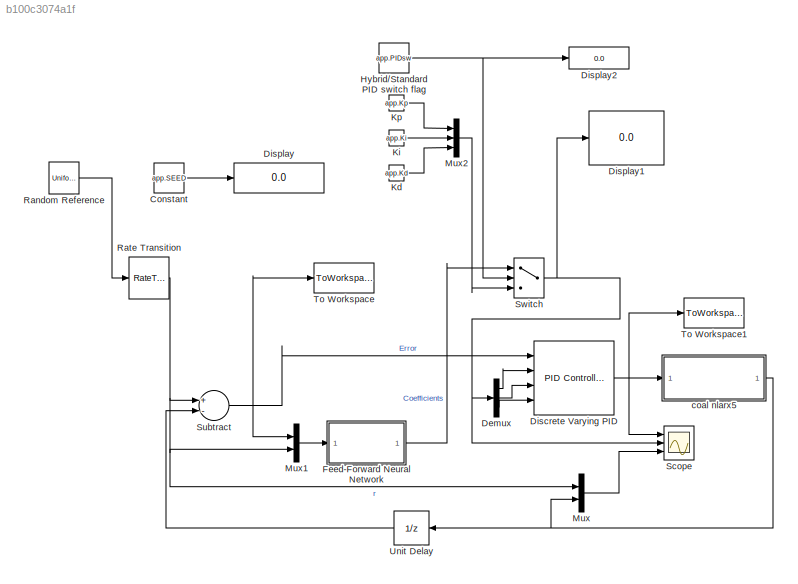
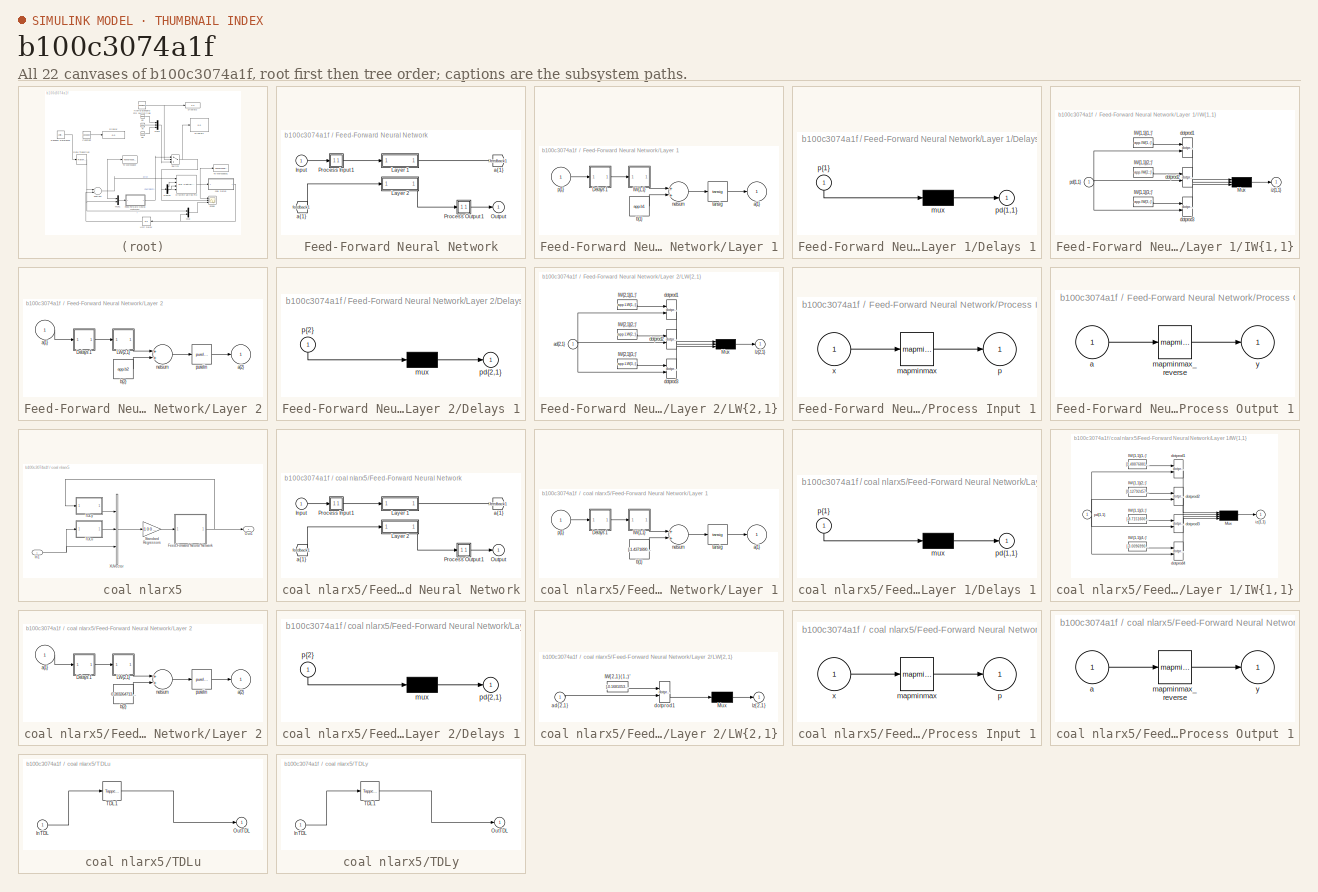
[diagram: thumbnail index - all 22 canvases of the model, root first then tree order]
MODEL slx_b100c3074a1f
KIND model
CONFIG AbsTol = auto
CONFIG EnableMultiTasking = on
CONFIG FixedStep = 1
CONFIG MaxStep = auto
CONFIG MinStep = auto
CONFIG RelTol = 1e-3
CONFIG SampleTimeConstraint = Unconstrained
CONFIG Solver = ode3
CONFIG SolverName = ode3
CONFIG StartTime = 0.0
CONFIG StopTime = 300
BLOCK [Constant] Constant
  Value = app.SEED
BLOCK [Demux] Demux
  DisplayOption = bar
  Outputs = 3
  Ports = [1, 3]
BLOCK [Reference] Discrete Varying PID  REF=simulink/Continuous/PID Controller
  Ports = [4, 1]
  SourceBlock = simulink/Continuous/PID Controller
  SourceProductBaseCode = SL
  SourceProductName = Simulink
  SourceType = PID 1dof
BLOCK [Display] Display
  Decimation = 1
  Ports = [1]
BLOCK [Display] Display1
  Decimation = 1
  Ports = [1]
BLOCK [Display] Display2
  Decimation = 1
  Ports = [1]
BLOCK [SubSystem] Feed-Forward Neural Network
  Ports = [1, 1]
  RequestExecContextInheritance = off
BLOCK [From] Feed-Forward Neural Network/ a{1} 
  GotoTag = feedback1
BLOCK [Inport] Feed-Forward Neural Network/Input
  IconDisplay = Port number
  PortDimensions = 2
BLOCK [SubSystem] Feed-Forward Neural Network/Layer 1
  Ports = [1, 1]
  RequestExecContextInheritance = off
BLOCK [SubSystem] Feed-Forward Neural Network/Layer 1/Delays 1
  Ports = [1, 1]
  RequestExecContextInheritance = off
BLOCK [Mux] Feed-Forward Neural Network/Layer 1/Delays 1/mux
  Inputs = 1
  Ports = [1, 1]
BLOCK [Outport] Feed-Forward Neural Network/Layer 1/Delays 1/pd{1,1}
  IconDisplay = Port number
BLOCK [Inport] Feed-Forward Neural Network/Layer 1/Delays 1/p{1}
  IconDisplay = Port number
  PortDimensions = 2
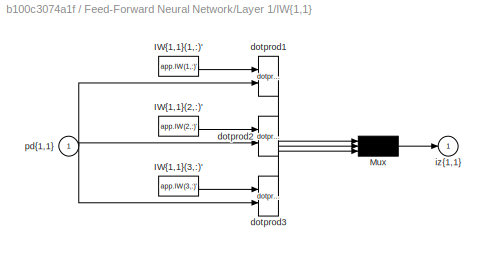
BLOCK [SubSystem] Feed-Forward Neural Network/Layer 1/IW{1,1}
  Ports = [1, 1]
  RequestExecContextInheritance = off
BLOCK [Constant] Feed-Forward Neural Network/Layer 1/IW{1,1}/IW{1,1}(1,:)'
  Value = app.IW(1,:)'
BLOCK [Constant] Feed-Forward Neural Network/Layer 1/IW{1,1}/IW{1,1}(2,:)'
  Value = app.IW(2,:)'
BLOCK [Constant] Feed-Forward Neural Network/Layer 1/IW{1,1}/IW{1,1}(3,:)'
  Value = app.IW(3,:)'
BLOCK [Mux] Feed-Forward Neural Network/Layer 1/IW{1,1}/Mux
  Inputs = 3
  Ports = [3, 1]
BLOCK [Reference] Feed-Forward Neural Network/Layer 1/IW{1,1}/dotprod1  REF=neural/Weight Functions/dotprod
  Ports = [2, 1]
  SourceBlock = neural/Weight Functions/dotprod
  SourceProductBaseCode = NN
  SourceProductName = Neural Network Toolbox
  SourceType = DOTPROD
BLOCK [Reference] Feed-Forward Neural Network/Layer 1/IW{1,1}/dotprod2  REF=neural/Weight Functions/dotprod
  Ports = [2, 1]
  SourceBlock = neural/Weight Functions/dotprod
  SourceProductBaseCode = NN
  SourceProductName = Neural Network Toolbox
  SourceType = DOTPROD
BLOCK [Reference] Feed-Forward Neural Network/Layer 1/IW{1,1}/dotprod3  REF=neural/Weight Functions/dotprod
  Ports = [2, 1]
  SourceBlock = neural/Weight Functions/dotprod
  SourceProductBaseCode = NN
  SourceProductName = Neural Network Toolbox
  SourceType = DOTPROD
BLOCK [Outport] Feed-Forward Neural Network/Layer 1/IW{1,1}/iz{1,1}
  IconDisplay = Port number
BLOCK [Inport] Feed-Forward Neural Network/Layer 1/IW{1,1}/pd{1,1}
  IconDisplay = Port number
  PortDimensions = 2
BLOCK [Outport] Feed-Forward Neural Network/Layer 1/a{1}
  IconDisplay = Port number
  InitialOutput = [0;0;0]
BLOCK [Constant] Feed-Forward Neural Network/Layer 1/b{1}
  Value = app.b1
BLOCK [Sum] Feed-Forward Neural Network/Layer 1/netsum
  Inputs = 2
  Ports = [2, 1]
BLOCK [Inport] Feed-Forward Neural Network/Layer 1/p{1}
  IconDisplay = Port number
  PortDimensions = 2
BLOCK [Reference] Feed-Forward Neural Network/Layer 1/tansig  REF=neural/Transfer Functions/tansig
  Ports = [1, 1]
  SourceBlock = neural/Transfer Functions/tansig
  SourceProductBaseCode = NN
  SourceProductName = Neural Network Toolbox
  SourceType = TANSIG
BLOCK [SubSystem] Feed-Forward Neural Network/Layer 2
  Ports = [1, 1]
  RequestExecContextInheritance = off
BLOCK [SubSystem] Feed-Forward Neural Network/Layer 2/Delays 1
  Ports = [1, 1]
  RequestExecContextInheritance = off
BLOCK [Mux] Feed-Forward Neural Network/Layer 2/Delays 1/mux
  Inputs = 1
  Ports = [1, 1]
BLOCK [Outport] Feed-Forward Neural Network/Layer 2/Delays 1/pd{2,1}
  IconDisplay = Port number
BLOCK [Inport] Feed-Forward Neural Network/Layer 2/Delays 1/p{2}
  IconDisplay = Port number
  PortDimensions = 3
BLOCK [SubSystem] Feed-Forward Neural Network/Layer 2/LW{2,1}
  Ports = [1, 1]
  RequestExecContextInheritance = off
BLOCK [Constant] Feed-Forward Neural Network/Layer 2/LW{2,1}/IW{2,1}(1,:)'
  Value = app.LW(1,:)'
BLOCK [Constant] Feed-Forward Neural Network/Layer 2/LW{2,1}/IW{2,1}(2,:)'
  Value = app.LW(2,:)'
BLOCK [Constant] Feed-Forward Neural Network/Layer 2/LW{2,1}/IW{2,1}(3,:)'
  Value = app.LW(3,:)'
BLOCK [Mux] Feed-Forward Neural Network/Layer 2/LW{2,1}/Mux
  Inputs = 3
  Ports = [3, 1]
BLOCK [Inport] Feed-Forward Neural Network/Layer 2/LW{2,1}/ad{2,1}
  IconDisplay = Port number
  PortDimensions = 3
BLOCK [Reference] Feed-Forward Neural Network/Layer 2/LW{2,1}/dotprod1  REF=neural/Weight Functions/dotprod
  Ports = [2, 1]
  SourceBlock = neural/Weight Functions/dotprod
  SourceProductBaseCode = NN
  SourceProductName = Neural Network Toolbox
  SourceType = DOTPROD
BLOCK [Reference] Feed-Forward Neural Network/Layer 2/LW{2,1}/dotprod2  REF=neural/Weight Functions/dotprod
  Ports = [2, 1]
  SourceBlock = neural/Weight Functions/dotprod
  SourceProductBaseCode = NN
  SourceProductName = Neural Network Toolbox
  SourceType = DOTPROD
BLOCK [Reference] Feed-Forward Neural Network/Layer 2/LW{2,1}/dotprod3  REF=neural/Weight Functions/dotprod
  Ports = [2, 1]
  SourceBlock = neural/Weight Functions/dotprod
  SourceProductBaseCode = NN
  SourceProductName = Neural Network Toolbox
  SourceType = DOTPROD
BLOCK [Outport] Feed-Forward Neural Network/Layer 2/LW{2,1}/lz{2,1}
  IconDisplay = Port number
BLOCK [Inport] Feed-Forward Neural Network/Layer 2/a{1} 
  IconDisplay = Port number
  PortDimensions = 3
BLOCK [Outport] Feed-Forward Neural Network/Layer 2/a{2}
  IconDisplay = Port number
  InitialOutput = [0;0;0]
BLOCK [Constant] Feed-Forward Neural Network/Layer 2/b{2}
  Value = app.b2
BLOCK [Sum] Feed-Forward Neural Network/Layer 2/netsum
  Inputs = 2
  Ports = [2, 1]
BLOCK [Reference] Feed-Forward Neural Network/Layer 2/purelin  REF=neural/Transfer Functions/purelin
  Ports = [1, 1]
  SourceBlock = neural/Transfer Functions/purelin
  SourceProductBaseCode = NN
  SourceProductName = Neural Network Toolbox
  SourceType = PURELIN
BLOCK [Outport] Feed-Forward Neural Network/Output
  IconDisplay = Port number
  InitialOutput = [0;0;0]
BLOCK [SubSystem] Feed-Forward Neural Network/Process Input 1
  Ports = [1, 1]
  RequestExecContextInheritance = off
BLOCK [Reference] Feed-Forward Neural Network/Process Input 1/mapminmax  REF=neural/Processing Functions/mapminmax
  Ports = [1, 1]
  SourceBlock = neural/Processing Functions/mapminmax
  SourceProductBaseCode = NN
  SourceProductName = Neural Network Toolbox
  SourceType = MAPMINMAX Preprocess
BLOCK [Outport] Feed-Forward Neural Network/Process Input 1/p
  IconDisplay = Port number
  PortDimensions = 2
BLOCK [Inport] Feed-Forward Neural Network/Process Input 1/x
  IconDisplay = Port number
  PortDimensions = 2
BLOCK [SubSystem] Feed-Forward Neural Network/Process Output 1
  Ports = [1, 1]
  RequestExecContextInheritance = off
BLOCK [Inport] Feed-Forward Neural Network/Process Output 1/a
  IconDisplay = Port number
  PortDimensions = 3
BLOCK [Reference] Feed-Forward Neural Network/Process Output 1/mapminmax_reverse  REF=neural/Processing Functions/mapminmax_reverse
  Ports = [1, 1]
  SourceBlock = neural/Processing Functions/mapminmax_reverse
  SourceProductBaseCode = NN
  SourceProductName = Neural Network Toolbox
  SourceType = MAPMINMAX Reverse Process
BLOCK [Outport] Feed-Forward Neural Network/Process Output 1/y
  IconDisplay = Port number
  PortDimensions = 3
BLOCK [Goto] Feed-Forward Neural Network/a{1}
  GotoTag = feedback1
BLOCK [Constant] Hybrid//Standard PID switch flag
  Value = app.PIDsw
BLOCK [Constant] Kd
  Value = app.Kd
BLOCK [Constant] Ki 
  Value = app.Ki
BLOCK [Constant] Kp
  Value = app.Kp
BLOCK [Mux] Mux
  DisplayOption = bar
  Inputs = 2
  Ports = [2, 1]
BLOCK [Mux] Mux1
  DisplayOption = bar
  Inputs = 2
  Ports = [2, 1]
BLOCK [Mux] Mux2
  DisplayOption = bar
  Inputs = 3
  Ports = [3, 1]
BLOCK [UniformRandomNumber] Random Reference
  Maximum = 110
  Minimum = 10
  SampleTime = 100
  Seed = app.SEED
BLOCK [RateTransition] Rate Transition
  Deterministic = off
  InitialCondition = 60
  OutPortSampleTime = 1
BLOCK [Scope] Scope
  Floating = off
  NumInputPorts = 3
  Ports = [3]
  ScopeSpecificationString = Simulink.scopes.TimeScopeBlockCfg('CurrentConfiguration', extmgr.ConfigurationSet(extmgr.Configuration('Core','General UI',true),extmgr.Configuration('Core','Source UI',true),extmgr.Configuration('Sources','WiredSimulink',true,'DataLoggingLimitDataPoints',true,'DataLoggingSaveFormat','Array','DataLoggingDecimation','1','DataLoggingDecimateData',true),extmgr.Configuration('Visuals','Time Domain',tr...<+2962ch>
BLOCK [Sum] Subtract
  InputSameDT = off
  Inputs = +-
  OutDataTypeStr = Inherit: Inherit via internal rule
  Ports = [2, 1]
  SaturateOnIntegerOverflow = off
BLOCK [Switch] Switch
  Criteria = u2 > Threshold
  InputSameDT = off
  SaturateOnIntegerOverflow = off
  Threshold = 0.5
BLOCK [ToWorkspace] To Workspace
  FixptAsFi = on
  MaxDataPoints = inf
  Ports = [1]
  SampleTime = -1
  Save2DSignal = 3-D array (concatenate along third dimension)
  SaveFormat = Timeseries
  VariableName = simout
BLOCK [ToWorkspace] To Workspace1
  FixptAsFi = on
  MaxDataPoints = inf
  Ports = [1]
  SampleTime = -1
  Save2DSignal = 3-D array (concatenate along third dimension)
  SaveFormat = Timeseries
  VariableName = simout1
BLOCK [UnitDelay] Unit Delay
  InputProcessing = Elements as channels (sample based)
  SampleTime = -1
BLOCK [SubSystem] coal nlarx5
  Ports = [1, 1]
  RequestExecContextInheritance = off
BLOCK [SubSystem] coal nlarx5/Feed-Forward Neural Network
  Ports = [1, 1]
  RequestExecContextInheritance = off
BLOCK [From] coal nlarx5/Feed-Forward Neural Network/ a{1} 
  GotoTag = feedback1
BLOCK [Inport] coal nlarx5/Feed-Forward Neural Network/Input
  IconDisplay = Port number
  PortDimensions = 4
BLOCK [SubSystem] coal nlarx5/Feed-Forward Neural Network/Layer 1
  Ports = [1, 1]
  RequestExecContextInheritance = off
BLOCK [SubSystem] coal nlarx5/Feed-Forward Neural Network/Layer 1/Delays 1
  Ports = [1, 1]
  RequestExecContextInheritance = off
BLOCK [Mux] coal nlarx5/Feed-Forward Neural Network/Layer 1/Delays 1/mux
  Inputs = 1
  Ports = [1, 1]
BLOCK [Outport] coal nlarx5/Feed-Forward Neural Network/Layer 1/Delays 1/pd{1,1}
  IconDisplay = Port number
BLOCK [Inport] coal nlarx5/Feed-Forward Neural Network/Layer 1/Delays 1/p{1}
  IconDisplay = Port number
  PortDimensions = 4
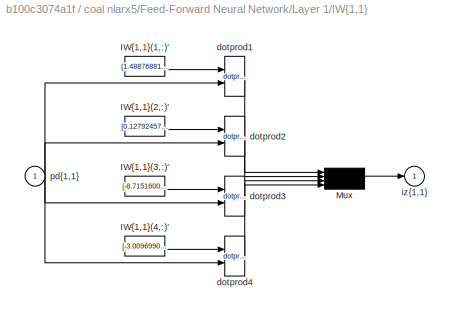
BLOCK [SubSystem] coal nlarx5/Feed-Forward Neural Network/Layer 1/IW{1,1}
  Ports = [1, 1]
  RequestExecContextInheritance = off
BLOCK [Constant] coal nlarx5/Feed-Forward Neural Network/Layer 1/IW{1,1}/IW{1,1}(1,:)'
  Value = [1.488768819831722822755182278342545032501220703125;-0.2039017487517025273291437770240008831024169921875;-2.58551533135581212974329901044256985187530517578125;-1.5133298985257901403400637718732468783855438232421875]
BLOCK [Constant] coal nlarx5/Feed-Forward Neural Network/Layer 1/IW{1,1}/IW{1,1}(2,:)'
  Value = [0.1279245763919454603740888387619634158909320831298828125;-0.0183675015744932494665686562029804917983710765838623046875;0.68473902135512287880914072957239113748073577880859375;-0.0249347657987400543599942892569742980413138866424560546875]
BLOCK [Constant] coal nlarx5/Feed-Forward Neural Network/Layer 1/IW{1,1}/IW{1,1}(3,:)'
  Value = [-8.7151600518426022290441324003040790557861328125;-9.7173872389083140177490349742583930492401123046875;-2.02762108697873344453910249285399913787841796875;-9.5062801502944456188970434595830738544464111328125]
BLOCK [Constant] coal nlarx5/Feed-Forward Neural Network/Layer 1/IW{1,1}/IW{1,1}(4,:)'
  Value = [-3.009699032485234848621757919318042695522308349609375;-2.3890413122666611656086388393305242061614990234375;-0.02383241632746392613118047165698953904211521148681640625;1.7174940124168551758288003838970325887203216552734375]
BLOCK [Mux] coal nlarx5/Feed-Forward Neural Network/Layer 1/IW{1,1}/Mux
  Ports = [4, 1]
BLOCK [Reference] coal nlarx5/Feed-Forward Neural Network/Layer 1/IW{1,1}/dotprod1  REF=neural/Weight Functions/dotprod
  Ports = [2, 1]
  SourceBlock = neural/Weight Functions/dotprod
  SourceProductBaseCode = NN
  SourceProductName = Neural Network Toolbox
  SourceType = DOTPROD
BLOCK [Reference] coal nlarx5/Feed-Forward Neural Network/Layer 1/IW{1,1}/dotprod2  REF=neural/Weight Functions/dotprod
  Ports = [2, 1]
  SourceBlock = neural/Weight Functions/dotprod
  SourceProductBaseCode = NN
  SourceProductName = Neural Network Toolbox
  SourceType = DOTPROD
BLOCK [Reference] coal nlarx5/Feed-Forward Neural Network/Layer 1/IW{1,1}/dotprod3  REF=neural/Weight Functions/dotprod
  Ports = [2, 1]
  SourceBlock = neural/Weight Functions/dotprod
  SourceProductBaseCode = NN
  SourceProductName = Neural Network Toolbox
  SourceType = DOTPROD
BLOCK [Reference] coal nlarx5/Feed-Forward Neural Network/Layer 1/IW{1,1}/dotprod4  REF=neural/Weight Functions/dotprod
  Ports = [2, 1]
  SourceBlock = neural/Weight Functions/dotprod
  SourceProductBaseCode = NN
  SourceProductName = Neural Network Toolbox
  SourceType = DOTPROD
BLOCK [Outport] coal nlarx5/Feed-Forward Neural Network/Layer 1/IW{1,1}/iz{1,1}
  IconDisplay = Port number
BLOCK [Inport] coal nlarx5/Feed-Forward Neural Network/Layer 1/IW{1,1}/pd{1,1}
  IconDisplay = Port number
  PortDimensions = 4
BLOCK [Outport] coal nlarx5/Feed-Forward Neural Network/Layer 1/a{1}
  IconDisplay = Port number
  InitialOutput = [0;0;0;0]
BLOCK [Constant] coal nlarx5/Feed-Forward Neural Network/Layer 1/b{1}
  Value = [-1.4371890466328078872493279050104320049285888671875;-0.351190609412597443128589702610042877495288848876953125;-5.294341471162891110679993289522826671600341796875;3.8571676904999652180094926734454929828643798828125]
BLOCK [Sum] coal nlarx5/Feed-Forward Neural Network/Layer 1/netsum
  Inputs = 2
  Ports = [2, 1]
BLOCK [Inport] coal nlarx5/Feed-Forward Neural Network/Layer 1/p{1}
  IconDisplay = Port number
  PortDimensions = 4
BLOCK [Reference] coal nlarx5/Feed-Forward Neural Network/Layer 1/tansig  REF=neural/Transfer Functions/tansig
  Ports = [1, 1]
  SourceBlock = neural/Transfer Functions/tansig
  SourceProductBaseCode = NN
  SourceProductName = Neural Network Toolbox
  SourceType = TANSIG
BLOCK [SubSystem] coal nlarx5/Feed-Forward Neural Network/Layer 2
  Ports = [1, 1]
  RequestExecContextInheritance = off
BLOCK [SubSystem] coal nlarx5/Feed-Forward Neural Network/Layer 2/Delays 1
  Ports = [1, 1]
  RequestExecContextInheritance = off
BLOCK [Mux] coal nlarx5/Feed-Forward Neural Network/Layer 2/Delays 1/mux
  Inputs = 1
  Ports = [1, 1]
BLOCK [Outport] coal nlarx5/Feed-Forward Neural Network/Layer 2/Delays 1/pd{2,1}
  IconDisplay = Port number
BLOCK [Inport] coal nlarx5/Feed-Forward Neural Network/Layer 2/Delays 1/p{2}
  IconDisplay = Port number
  PortDimensions = 4
BLOCK [SubSystem] coal nlarx5/Feed-Forward Neural Network/Layer 2/LW{2,1}
  Ports = [1, 1]
  RequestExecContextInheritance = off
BLOCK [Constant] coal nlarx5/Feed-Forward Neural Network/Layer 2/LW{2,1}/IW{2,1}(1,:)'
  Value = [-0.1681053919770003346467746041525970213115215301513671875;1.3867154514719988167570363657432608306407928466796875;6.327937260805255488549381226448531378991901874542236328125e-05;-0.0286154977675083417587575951301914756186306476593017578125]
BLOCK [Mux] coal nlarx5/Feed-Forward Neural Network/Layer 2/LW{2,1}/Mux
  Inputs = 1
  Ports = [1, 1]
BLOCK [Inport] coal nlarx5/Feed-Forward Neural Network/Layer 2/LW{2,1}/ad{2,1}
  IconDisplay = Port number
  PortDimensions = 4
BLOCK [Reference] coal nlarx5/Feed-Forward Neural Network/Layer 2/LW{2,1}/dotprod1  REF=neural/Weight Functions/dotprod
  Ports = [2, 1]
  SourceBlock = neural/Weight Functions/dotprod
  SourceProductBaseCode = NN
  SourceProductName = Neural Network Toolbox
  SourceType = DOTPROD
BLOCK [Outport] coal nlarx5/Feed-Forward Neural Network/Layer 2/LW{2,1}/lz{2,1}
  IconDisplay = Port number
BLOCK [Inport] coal nlarx5/Feed-Forward Neural Network/Layer 2/a{1} 
  IconDisplay = Port number
  PortDimensions = 4
BLOCK [Outport] coal nlarx5/Feed-Forward Neural Network/Layer 2/a{2}
  IconDisplay = Port number
  InitialOutput = 0
BLOCK [Constant] coal nlarx5/Feed-Forward Neural Network/Layer 2/b{2}
  Value = 0.2832647136529138354177348446683026850223541259765625
BLOCK [Sum] coal nlarx5/Feed-Forward Neural Network/Layer 2/netsum
  Inputs = 2
  Ports = [2, 1]
BLOCK [Reference] coal nlarx5/Feed-Forward Neural Network/Layer 2/purelin  REF=neural/Transfer Functions/purelin
  Ports = [1, 1]
  SourceBlock = neural/Transfer Functions/purelin
  SourceProductBaseCode = NN
  SourceProductName = Neural Network Toolbox
  SourceType = PURELIN
BLOCK [Outport] coal nlarx5/Feed-Forward Neural Network/Output
  IconDisplay = Port number
  InitialOutput = 0
BLOCK [SubSystem] coal nlarx5/Feed-Forward Neural Network/Process Input 1
  Ports = [1, 1]
  RequestExecContextInheritance = off
BLOCK [Reference] coal nlarx5/Feed-Forward Neural Network/Process Input 1/mapminmax  REF=neural/Processing Functions/mapminmax
  Ports = [1, 1]
  SourceBlock = neural/Processing Functions/mapminmax
  SourceProductBaseCode = NN
  SourceProductName = Neural Network Toolbox
  SourceType = MAPMINMAX Preprocess
BLOCK [Outport] coal nlarx5/Feed-Forward Neural Network/Process Input 1/p
  IconDisplay = Port number
  PortDimensions = 4
BLOCK [Inport] coal nlarx5/Feed-Forward Neural Network/Process Input 1/x
  IconDisplay = Port number
  PortDimensions = 4
BLOCK [SubSystem] coal nlarx5/Feed-Forward Neural Network/Process Output 1
  Ports = [1, 1]
  RequestExecContextInheritance = off
BLOCK [Inport] coal nlarx5/Feed-Forward Neural Network/Process Output 1/a
  IconDisplay = Port number
  PortDimensions = 1
BLOCK [Reference] coal nlarx5/Feed-Forward Neural Network/Process Output 1/mapminmax_reverse  REF=neural/Processing Functions/mapminmax_reverse
  Ports = [1, 1]
  SourceBlock = neural/Processing Functions/mapminmax_reverse
  SourceProductBaseCode = NN
  SourceProductName = Neural Network Toolbox
  SourceType = MAPMINMAX Reverse Process
BLOCK [Outport] coal nlarx5/Feed-Forward Neural Network/Process Output 1/y
  IconDisplay = Port number
  PortDimensions = 1
BLOCK [Goto] coal nlarx5/Feed-Forward Neural Network/a{1}
  GotoTag = feedback1
BLOCK [Inport] coal nlarx5/In1
  IconDisplay = Port number
BLOCK [Outport] coal nlarx5/Out1
  IconDisplay = Port number
BLOCK [Gain] coal nlarx5/Standard Regressors
  Gain = [1 0 0 0 0;0 1 0 0 0;0 0 1 0 0;0 0 0 1 0]
  Multiplication = Matrix(K*u)
  OutDataTypeStr = Inherit: Inherit via internal rule
  ParamDataTypeStr = Inherit: Inherit via internal rule
  SaturateOnIntegerOverflow = off
BLOCK [SubSystem] coal nlarx5/TDLu
  Ports = [1, 1]
  RequestExecContextInheritance = off
BLOCK [Inport] coal nlarx5/TDLu/InTDL
  IconDisplay = Port number
BLOCK [Outport] coal nlarx5/TDLu/OutTDL
  IconDisplay = Port number
BLOCK [Reference] coal nlarx5/TDLu/TDL1  REF=simulink/Discrete/Tapped Delay
  Ports = [1, 1]
  SourceBlock = simulink/Discrete/Tapped Delay
  SourceProductBaseCode = SL
  SourceProductName = Simulink
  SourceType = Tapped Delay Line
BLOCK [SubSystem] coal nlarx5/TDLy
  Ports = [1, 1]
  RequestExecContextInheritance = off
BLOCK [Inport] coal nlarx5/TDLy/InTDL
  IconDisplay = Port number
BLOCK [Outport] coal nlarx5/TDLy/OutTDL
  IconDisplay = Port number
BLOCK [Reference] coal nlarx5/TDLy/TDL1  REF=simulink/Discrete/Tapped Delay
  Ports = [1, 1]
  SourceBlock = simulink/Discrete/Tapped Delay
  SourceProductBaseCode = SL
  SourceProductName = Simulink
  SourceType = Tapped Delay Line
BLOCK [Concatenate] coal nlarx5/XUVector
  NumInputs = 3
  Ports = [3, 1]
LINE Constant:1 -> Display:1
LINE Demux:1 -> Discrete Varying PID:2
LINE Demux:2 -> Discrete Varying PID:3
LINE Demux:3 -> Discrete Varying PID:4
NET Discrete Varying PID:1 -> Scope:1, To Workspace1:1, coal nlarx5:1
LINE Feed-Forward Neural Network/ a{1} :1 -> Feed-Forward Neural Network/Layer 2:1
LINE Feed-Forward Neural Network/Input:1 -> Feed-Forward Neural Network/Process Input 1:1
LINE Feed-Forward Neural Network/Layer 1/Delays 1/mux:1 -> Feed-Forward Neural Network/Layer 1/Delays 1/pd{1,1}:1
LINE Feed-Forward Neural Network/Layer 1/Delays 1/p{1}:1 -> Feed-Forward Neural Network/Layer 1/Delays 1/mux:1
LINE Feed-Forward Neural Network/Layer 1/Delays 1:1 -> Feed-Forward Neural Network/Layer 1/IW{1,1}:1
LINE Feed-Forward Neural Network/Layer 1/IW{1,1}/IW{1,1}(1,:)':1 -> Feed-Forward Neural Network/Layer 1/IW{1,1}/dotprod1:1
LINE Feed-Forward Neural Network/Layer 1/IW{1,1}/IW{1,1}(2,:)':1 -> Feed-Forward Neural Network/Layer 1/IW{1,1}/dotprod2:1
LINE Feed-Forward Neural Network/Layer 1/IW{1,1}/IW{1,1}(3,:)':1 -> Feed-Forward Neural Network/Layer 1/IW{1,1}/dotprod3:1
LINE Feed-Forward Neural Network/Layer 1/IW{1,1}/Mux:1 -> Feed-Forward Neural Network/Layer 1/IW{1,1}/iz{1,1}:1
LINE Feed-Forward Neural Network/Layer 1/IW{1,1}/dotprod1:1 -> Feed-Forward Neural Network/Layer 1/IW{1,1}/Mux:1
LINE Feed-Forward Neural Network/Layer 1/IW{1,1}/dotprod2:1 -> Feed-Forward Neural Network/Layer 1/IW{1,1}/Mux:2
LINE Feed-Forward Neural Network/Layer 1/IW{1,1}/dotprod3:1 -> Feed-Forward Neural Network/Layer 1/IW{1,1}/Mux:3
NET Feed-Forward Neural Network/Layer 1/IW{1,1}/pd{1,1}:1 -> Feed-Forward Neural Network/Layer 1/IW{1,1}/dotprod1:2, Feed-Forward Neural Network/Layer 1/IW{1,1}/dotprod2:2, Feed-Forward Neural Network/Layer 1/IW{1,1}/dotprod3:2
LINE Feed-Forward Neural Network/Layer 1/IW{1,1}:1 -> Feed-Forward Neural Network/Layer 1/netsum:1
LINE Feed-Forward Neural Network/Layer 1/b{1}:1 -> Feed-Forward Neural Network/Layer 1/netsum:2
LINE Feed-Forward Neural Network/Layer 1/netsum:1 -> Feed-Forward Neural Network/Layer 1/tansig:1
LINE Feed-Forward Neural Network/Layer 1/p{1}:1 -> Feed-Forward Neural Network/Layer 1/Delays 1:1
LINE Feed-Forward Neural Network/Layer 1/tansig:1 -> Feed-Forward Neural Network/Layer 1/a{1}:1
LINE Feed-Forward Neural Network/Layer 1:1 -> Feed-Forward Neural Network/a{1}:1
LINE Feed-Forward Neural Network/Layer 2/Delays 1/mux:1 -> Feed-Forward Neural Network/Layer 2/Delays 1/pd{2,1}:1
LINE Feed-Forward Neural Network/Layer 2/Delays 1/p{2}:1 -> Feed-Forward Neural Network/Layer 2/Delays 1/mux:1
LINE Feed-Forward Neural Network/Layer 2/Delays 1:1 -> Feed-Forward Neural Network/Layer 2/LW{2,1}:1
LINE Feed-Forward Neural Network/Layer 2/LW{2,1}/IW{2,1}(1,:)':1 -> Feed-Forward Neural Network/Layer 2/LW{2,1}/dotprod1:1
LINE Feed-Forward Neural Network/Layer 2/LW{2,1}/IW{2,1}(2,:)':1 -> Feed-Forward Neural Network/Layer 2/LW{2,1}/dotprod2:1
LINE Feed-Forward Neural Network/Layer 2/LW{2,1}/IW{2,1}(3,:)':1 -> Feed-Forward Neural Network/Layer 2/LW{2,1}/dotprod3:1
LINE Feed-Forward Neural Network/Layer 2/LW{2,1}/Mux:1 -> Feed-Forward Neural Network/Layer 2/LW{2,1}/lz{2,1}:1
NET Feed-Forward Neural Network/Layer 2/LW{2,1}/ad{2,1}:1 -> Feed-Forward Neural Network/Layer 2/LW{2,1}/dotprod1:2, Feed-Forward Neural Network/Layer 2/LW{2,1}/dotprod2:2, Feed-Forward Neural Network/Layer 2/LW{2,1}/dotprod3:2
LINE Feed-Forward Neural Network/Layer 2/LW{2,1}/dotprod1:1 -> Feed-Forward Neural Network/Layer 2/LW{2,1}/Mux:1
LINE Feed-Forward Neural Network/Layer 2/LW{2,1}/dotprod2:1 -> Feed-Forward Neural Network/Layer 2/LW{2,1}/Mux:2
LINE Feed-Forward Neural Network/Layer 2/LW{2,1}/dotprod3:1 -> Feed-Forward Neural Network/Layer 2/LW{2,1}/Mux:3
LINE Feed-Forward Neural Network/Layer 2/LW{2,1}:1 -> Feed-Forward Neural Network/Layer 2/netsum:1
LINE Feed-Forward Neural Network/Layer 2/a{1} :1 -> Feed-Forward Neural Network/Layer 2/Delays 1:1
LINE Feed-Forward Neural Network/Layer 2/b{2}:1 -> Feed-Forward Neural Network/Layer 2/netsum:2
LINE Feed-Forward Neural Network/Layer 2/netsum:1 -> Feed-Forward Neural Network/Layer 2/purelin:1
LINE Feed-Forward Neural Network/Layer 2/purelin:1 -> Feed-Forward Neural Network/Layer 2/a{2}:1
LINE Feed-Forward Neural Network/Layer 2:1 -> Feed-Forward Neural Network/Process Output 1:1
LINE Feed-Forward Neural Network/Process Input 1/mapminmax:1 -> Feed-Forward Neural Network/Process Input 1/p:1
LINE Feed-Forward Neural Network/Process Input 1/x:1 -> Feed-Forward Neural Network/Process Input 1/mapminmax:1
LINE Feed-Forward Neural Network/Process Input 1:1 -> Feed-Forward Neural Network/Layer 1:1
LINE Feed-Forward Neural Network/Process Output 1/a:1 -> Feed-Forward Neural Network/Process Output 1/mapminmax_reverse:1
LINE Feed-Forward Neural Network/Process Output 1/mapminmax_reverse:1 -> Feed-Forward Neural Network/Process Output 1/y:1
LINE Feed-Forward Neural Network/Process Output 1:1 -> Feed-Forward Neural Network/Output:1
LINE Feed-Forward Neural Network:1 -> Switch:1
NET Hybrid//Standard PID switch flag:1 -> Display2:1, Switch:2
LINE Kd:1 -> Mux2:3
LINE Ki :1 -> Mux2:2
LINE Kp:1 -> Mux2:1
LINE Mux1:1 -> Feed-Forward Neural Network:1
LINE Mux2:1 -> Switch:3
LINE Mux:1 -> Scope:3
LINE Random Reference:1 -> Rate Transition:1
NET Rate Transition:1 -> Mux1:2, Mux:1, Subtract:1
NET Subtract:1 -> Discrete Varying PID:1, Mux1:1, To Workspace:1
NET Switch:1 -> Demux:1, Display1:1, Scope:2
LINE Unit Delay:1 -> Subtract:2
LINE coal nlarx5/Feed-Forward Neural Network/ a{1} :1 -> coal nlarx5/Feed-Forward Neural Network/Layer 2:1
LINE coal nlarx5/Feed-Forward Neural Network/Input:1 -> coal nlarx5/Feed-Forward Neural Network/Process Input 1:1
LINE coal nlarx5/Feed-Forward Neural Network/Layer 1/Delays 1/mux:1 -> coal nlarx5/Feed-Forward Neural Network/Layer 1/Delays 1/pd{1,1}:1
LINE coal nlarx5/Feed-Forward Neural Network/Layer 1/Delays 1/p{1}:1 -> coal nlarx5/Feed-Forward Neural Network/Layer 1/Delays 1/mux:1
LINE coal nlarx5/Feed-Forward Neural Network/Layer 1/Delays 1:1 -> coal nlarx5/Feed-Forward Neural Network/Layer 1/IW{1,1}:1
LINE coal nlarx5/Feed-Forward Neural Network/Layer 1/IW{1,1}/IW{1,1}(1,:)':1 -> coal nlarx5/Feed-Forward Neural Network/Layer 1/IW{1,1}/dotprod1:1
LINE coal nlarx5/Feed-Forward Neural Network/Layer 1/IW{1,1}/IW{1,1}(2,:)':1 -> coal nlarx5/Feed-Forward Neural Network/Layer 1/IW{1,1}/dotprod2:1
LINE coal nlarx5/Feed-Forward Neural Network/Layer 1/IW{1,1}/IW{1,1}(3,:)':1 -> coal nlarx5/Feed-Forward Neural Network/Layer 1/IW{1,1}/dotprod3:1
LINE coal nlarx5/Feed-Forward Neural Network/Layer 1/IW{1,1}/IW{1,1}(4,:)':1 -> coal nlarx5/Feed-Forward Neural Network/Layer 1/IW{1,1}/dotprod4:1
LINE coal nlarx5/Feed-Forward Neural Network/Layer 1/IW{1,1}/Mux:1 -> coal nlarx5/Feed-Forward Neural Network/Layer 1/IW{1,1}/iz{1,1}:1
LINE coal nlarx5/Feed-Forward Neural Network/Layer 1/IW{1,1}/dotprod1:1 -> coal nlarx5/Feed-Forward Neural Network/Layer 1/IW{1,1}/Mux:1
LINE coal nlarx5/Feed-Forward Neural Network/Layer 1/IW{1,1}/dotprod2:1 -> coal nlarx5/Feed-Forward Neural Network/Layer 1/IW{1,1}/Mux:2
LINE coal nlarx5/Feed-Forward Neural Network/Layer 1/IW{1,1}/dotprod3:1 -> coal nlarx5/Feed-Forward Neural Network/Layer 1/IW{1,1}/Mux:3
LINE coal nlarx5/Feed-Forward Neural Network/Layer 1/IW{1,1}/dotprod4:1 -> coal nlarx5/Feed-Forward Neural Network/Layer 1/IW{1,1}/Mux:4
NET coal nlarx5/Feed-Forward Neural Network/Layer 1/IW{1,1}/pd{1,1}:1 -> coal nlarx5/Feed-Forward Neural Network/Layer 1/IW{1,1}/dotprod1:2, coal nlarx5/Feed-Forward Neural Network/Layer 1/IW{1,1}/dotprod2:2, coal nlarx5/Feed-Forward Neural Network/Layer 1/IW{1,1}/dotprod3:2, coal nlarx5/Feed-Forward Neural Network/Layer 1/IW{1,1}/dotprod4:2
LINE coal nlarx5/Feed-Forward Neural Network/Layer 1/IW{1,1}:1 -> coal nlarx5/Feed-Forward Neural Network/Layer 1/netsum:1
LINE coal nlarx5/Feed-Forward Neural Network/Layer 1/b{1}:1 -> coal nlarx5/Feed-Forward Neural Network/Layer 1/netsum:2
LINE coal nlarx5/Feed-Forward Neural Network/Layer 1/netsum:1 -> coal nlarx5/Feed-Forward Neural Network/Layer 1/tansig:1
LINE coal nlarx5/Feed-Forward Neural Network/Layer 1/p{1}:1 -> coal nlarx5/Feed-Forward Neural Network/Layer 1/Delays 1:1
LINE coal nlarx5/Feed-Forward Neural Network/Layer 1/tansig:1 -> coal nlarx5/Feed-Forward Neural Network/Layer 1/a{1}:1
LINE coal nlarx5/Feed-Forward Neural Network/Layer 1:1 -> coal nlarx5/Feed-Forward Neural Network/a{1}:1
LINE coal nlarx5/Feed-Forward Neural Network/Layer 2/Delays 1/mux:1 -> coal nlarx5/Feed-Forward Neural Network/Layer 2/Delays 1/pd{2,1}:1
LINE coal nlarx5/Feed-Forward Neural Network/Layer 2/Delays 1/p{2}:1 -> coal nlarx5/Feed-Forward Neural Network/Layer 2/Delays 1/mux:1
LINE coal nlarx5/Feed-Forward Neural Network/Layer 2/Delays 1:1 -> coal nlarx5/Feed-Forward Neural Network/Layer 2/LW{2,1}:1
LINE coal nlarx5/Feed-Forward Neural Network/Layer 2/LW{2,1}/IW{2,1}(1,:)':1 -> coal nlarx5/Feed-Forward Neural Network/Layer 2/LW{2,1}/dotprod1:1
LINE coal nlarx5/Feed-Forward Neural Network/Layer 2/LW{2,1}/Mux:1 -> coal nlarx5/Feed-Forward Neural Network/Layer 2/LW{2,1}/lz{2,1}:1
LINE coal nlarx5/Feed-Forward Neural Network/Layer 2/LW{2,1}/ad{2,1}:1 -> coal nlarx5/Feed-Forward Neural Network/Layer 2/LW{2,1}/dotprod1:2
LINE coal nlarx5/Feed-Forward Neural Network/Layer 2/LW{2,1}/dotprod1:1 -> coal nlarx5/Feed-Forward Neural Network/Layer 2/LW{2,1}/Mux:1
LINE coal nlarx5/Feed-Forward Neural Network/Layer 2/LW{2,1}:1 -> coal nlarx5/Feed-Forward Neural Network/Layer 2/netsum:1
LINE coal nlarx5/Feed-Forward Neural Network/Layer 2/a{1} :1 -> coal nlarx5/Feed-Forward Neural Network/Layer 2/Delays 1:1
LINE coal nlarx5/Feed-Forward Neural Network/Layer 2/b{2}:1 -> coal nlarx5/Feed-Forward Neural Network/Layer 2/netsum:2
LINE coal nlarx5/Feed-Forward Neural Network/Layer 2/netsum:1 -> coal nlarx5/Feed-Forward Neural Network/Layer 2/purelin:1
LINE coal nlarx5/Feed-Forward Neural Network/Layer 2/purelin:1 -> coal nlarx5/Feed-Forward Neural Network/Layer 2/a{2}:1
LINE coal nlarx5/Feed-Forward Neural Network/Layer 2:1 -> coal nlarx5/Feed-Forward Neural Network/Process Output 1:1
LINE coal nlarx5/Feed-Forward Neural Network/Process Input 1/mapminmax:1 -> coal nlarx5/Feed-Forward Neural Network/Process Input 1/p:1
LINE coal nlarx5/Feed-Forward Neural Network/Process Input 1/x:1 -> coal nlarx5/Feed-Forward Neural Network/Process Input 1/mapminmax:1
LINE coal nlarx5/Feed-Forward Neural Network/Process Input 1:1 -> coal nlarx5/Feed-Forward Neural Network/Layer 1:1
LINE coal nlarx5/Feed-Forward Neural Network/Process Output 1/a:1 -> coal nlarx5/Feed-Forward Neural Network/Process Output 1/mapminmax_reverse:1
LINE coal nlarx5/Feed-Forward Neural Network/Process Output 1/mapminmax_reverse:1 -> coal nlarx5/Feed-Forward Neural Network/Process Output 1/y:1
LINE coal nlarx5/Feed-Forward Neural Network/Process Output 1:1 -> coal nlarx5/Feed-Forward Neural Network/Output:1
NET coal nlarx5/Feed-Forward Neural Network:1 -> coal nlarx5/Out1:1, coal nlarx5/TDLy:1
NET coal nlarx5/In1:1 -> coal nlarx5/TDLu:1, coal nlarx5/XUVector:3
LINE coal nlarx5/Standard Regressors:1 -> coal nlarx5/Feed-Forward Neural Network:1
LINE coal nlarx5/TDLu/InTDL:1 -> coal nlarx5/TDLu/TDL1:1
LINE coal nlarx5/TDLu/TDL1:1 -> coal nlarx5/TDLu/OutTDL:1
LINE coal nlarx5/TDLu:1 -> coal nlarx5/XUVector:2
LINE coal nlarx5/TDLy/InTDL:1 -> coal nlarx5/TDLy/TDL1:1
LINE coal nlarx5/TDLy/TDL1:1 -> coal nlarx5/TDLy/OutTDL:1
LINE coal nlarx5/TDLy:1 -> coal nlarx5/XUVector:1
LINE coal nlarx5/XUVector:1 -> coal nlarx5/Standard Regressors:1
NET coal nlarx5:1 -> Mux:2, Unit Delay:1
note: NET lines group one-source signal fan-out (src -> all destinations, sorted); 1:1 wires keep LINE
